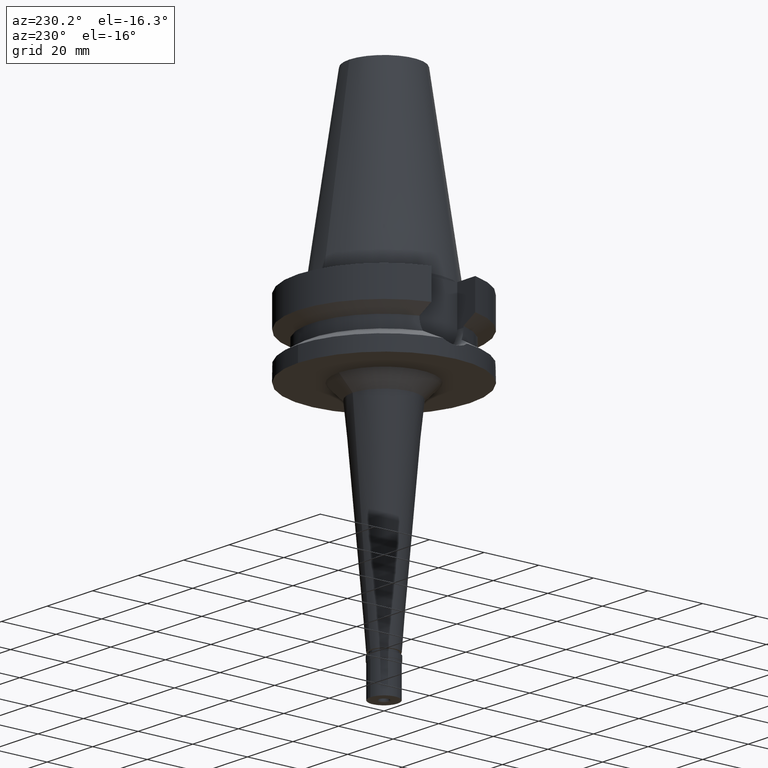
[diagram: clean part render]
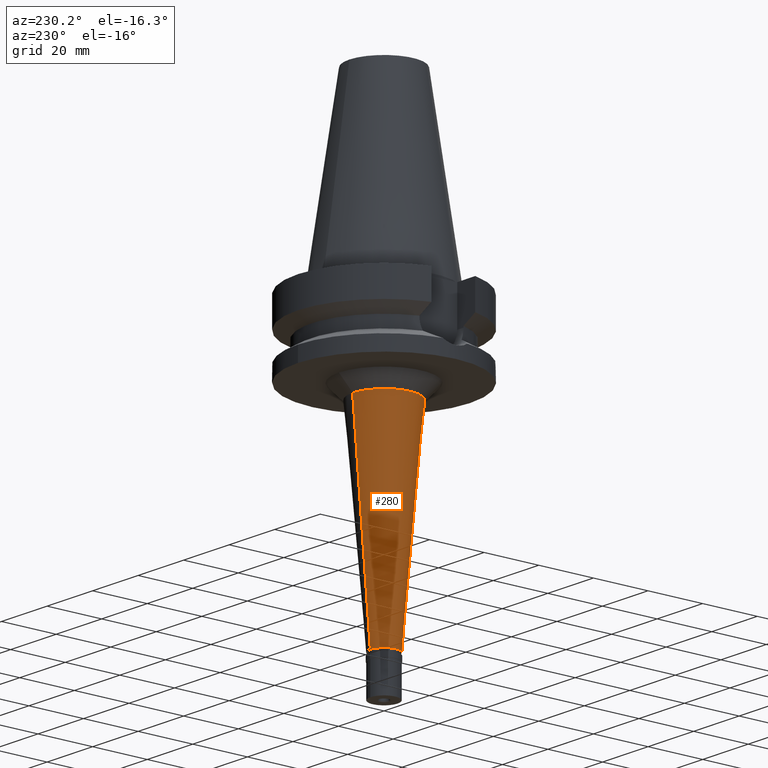
[diagram: same view with one face highlighted and labeled with its STEP entity id]
A machine part, auxiliary view. The second image highlights one B-rep face of the part: STEP entity #280.
In plain terms, the highlighted conical surface has half-angle 5 deg.
Its self-contained STEP definition (entity closure, byte-faithful):
#24 = CARTESIAN_POINT ( 'NONE',  ( 0.0000000000000000000, -11.47416110091999997, -32.00000000000000000 ) ) ;
#143 = FACE_OUTER_BOUND ( 'NONE', #779, .T. ) ;
#144 = VERTEX_POINT ( 'NONE', #944 ) ;
#280 = ADVANCED_FACE ( 'NONE', ( #143 ), #2357, .T. ) ;
#311 = ORIENTED_EDGE ( 'NONE', *, *, #1476, .F. ) ;
#344 = CARTESIAN_POINT ( 'NONE',  ( 0.0000000000000000000, 0.0000000000000000000, -32.00000000000000000 ) ) ;
#359 = AXIS2_PLACEMENT_3D ( 'NONE', #2897, #2888, #2163 ) ;
#371 = CARTESIAN_POINT ( 'NONE',  ( 0.0000000000000000000, 11.47416110091999997, -32.00000000000000000 ) ) ;
#382 = AXIS2_PLACEMENT_3D ( 'NONE', #344, #1524, #2458 ) ;
#779 = EDGE_LOOP ( 'NONE', ( #2419, #311, #1319, #1806 ) ) ;
#797 = EDGE_CURVE ( 'NONE', #873, #1480, #1114, .T. ) ;
#824 = DIRECTION ( 'NONE',  ( 0.0000000000000000000, 1.000000000000000000, 0.0000000000000000000 ) ) ;
#873 = VERTEX_POINT ( 'NONE', #24 ) ;
#944 = CARTESIAN_POINT ( 'NONE',  ( 0.0000000000000000000, -5.000000000000000000, -106.0000000000000000 ) ) ;
#1019 = DIRECTION ( 'NONE',  ( 0.0000000000000000000, 0.0000000000000000000, 1.000000000000000000 ) ) ;
#1068 = CARTESIAN_POINT ( 'NONE',  ( 0.0000000000000000000, 11.47416110091999997, -32.00000000000000000 ) ) ;
#1081 = CARTESIAN_POINT ( 'NONE',  ( 0.0000000000000000000, 5.000000000000000000, -106.0000000000000000 ) ) ;
#1114 = CIRCLE ( 'NONE', #382, 11.47416110091999997 ) ;
#1294 = DIRECTION ( 'NONE',  ( 0.0000000000000000000, -0.08715574274767391716, -0.9961946980917442129 ) ) ;
#1319 = ORIENTED_EDGE ( 'NONE', *, *, #797, .T. ) ;
#1341 = CARTESIAN_POINT ( 'NONE',  ( 0.0000000000000000000, -11.47416110091999997, -32.00000000000000000 ) ) ;
#1442 = EDGE_CURVE ( 'NONE', #1480, #2804, #1511, .T. ) ;
#1452 = CARTESIAN_POINT ( 'NONE',  ( 0.0000000000000000000, 0.0000000000000000000, -69.00000000000000000 ) ) ;
#1476 = EDGE_CURVE ( 'NONE', #873, #144, #2895, .T. ) ;
#1480 = VERTEX_POINT ( 'NONE', #371 ) ;
#1511 = LINE ( 'NONE', #1068, #2185 ) ;
#1524 = DIRECTION ( 'NONE',  ( 0.0000000000000000000, 0.0000000000000000000, -1.000000000000000000 ) ) ;
#1603 = VECTOR ( 'NONE', #2932, 1000.000000000000000 ) ;
#1806 = ORIENTED_EDGE ( 'NONE', *, *, #1442, .T. ) ;
#1846 = CIRCLE ( 'NONE', #359, 5.000000000000000000 ) ;
#2163 = DIRECTION ( 'NONE',  ( 0.0000000000000000000, 1.000000000000000000, 0.0000000000000000000 ) ) ;
#2185 = VECTOR ( 'NONE', #1294, 1000.000000000000000 ) ;
#2225 = EDGE_CURVE ( 'NONE', #2804, #144, #1846, .T. ) ;
#2357 = CONICAL_SURFACE ( 'NONE', #2639, 8.237080550458998118, 0.08726646259969973729 ) ;
#2419 = ORIENTED_EDGE ( 'NONE', *, *, #2225, .T. ) ;
#2458 = DIRECTION ( 'NONE',  ( 0.0000000000000000000, -1.000000000000000000, 0.0000000000000000000 ) ) ;
#2639 = AXIS2_PLACEMENT_3D ( 'NONE', #1452, #1019, #824 ) ;
#2804 = VERTEX_POINT ( 'NONE', #1081 ) ;
#2888 = DIRECTION ( 'NONE',  ( 0.0000000000000000000, 0.0000000000000000000, 1.000000000000000000 ) ) ;
#2895 = LINE ( 'NONE', #1341, #1603 ) ;
#2897 = CARTESIAN_POINT ( 'NONE',  ( 0.0000000000000000000, 0.0000000000000000000, -106.0000000000000000 ) ) ;
#2932 = DIRECTION ( 'NONE',  ( 0.0000000000000000000, 0.08715574274767391716, -0.9961946980917442129 ) ) ;